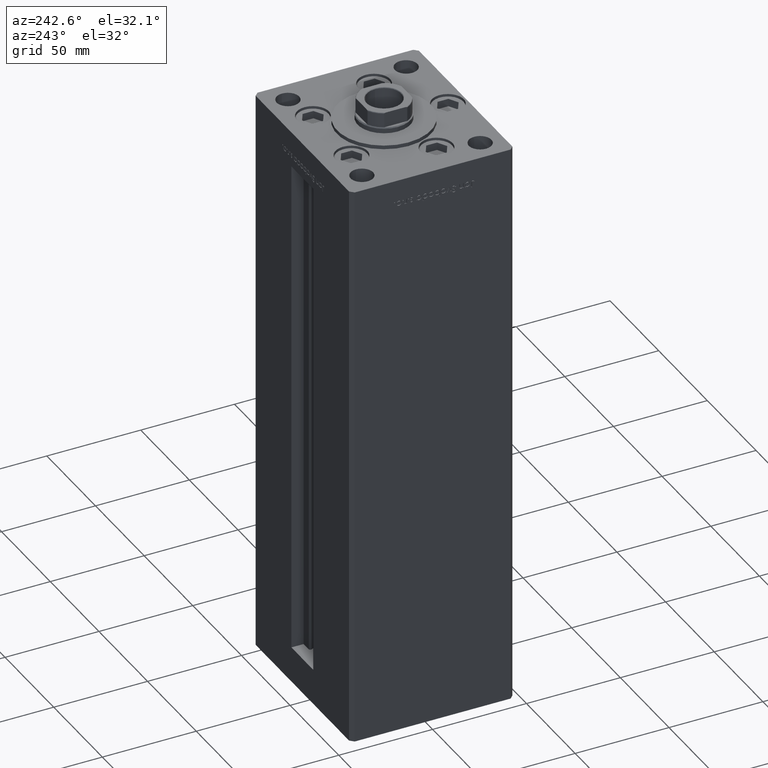
[diagram: clean part render]
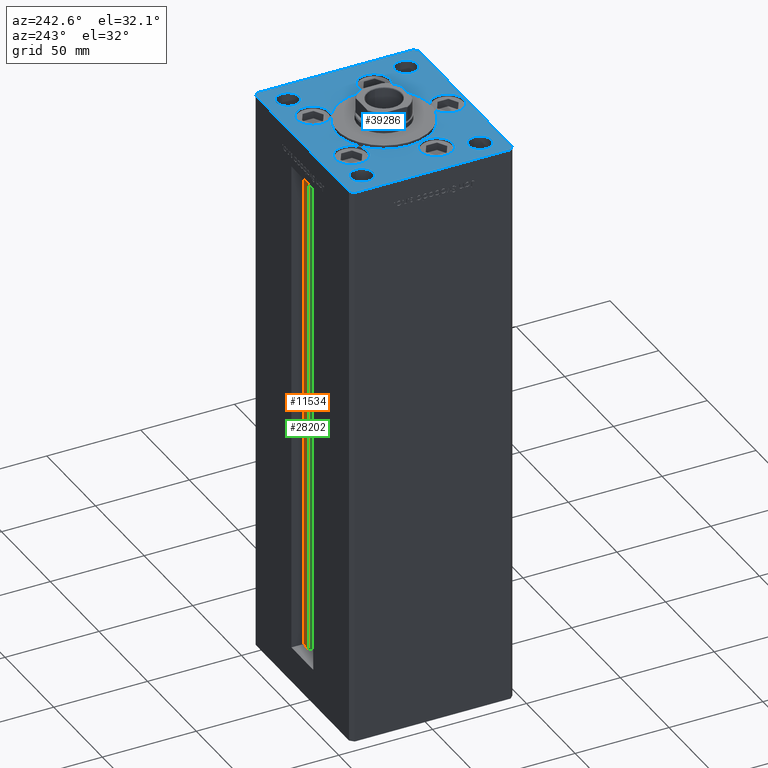
[diagram: same view with three faces highlighted in distinct colors, each labeled with its STEP entity id]
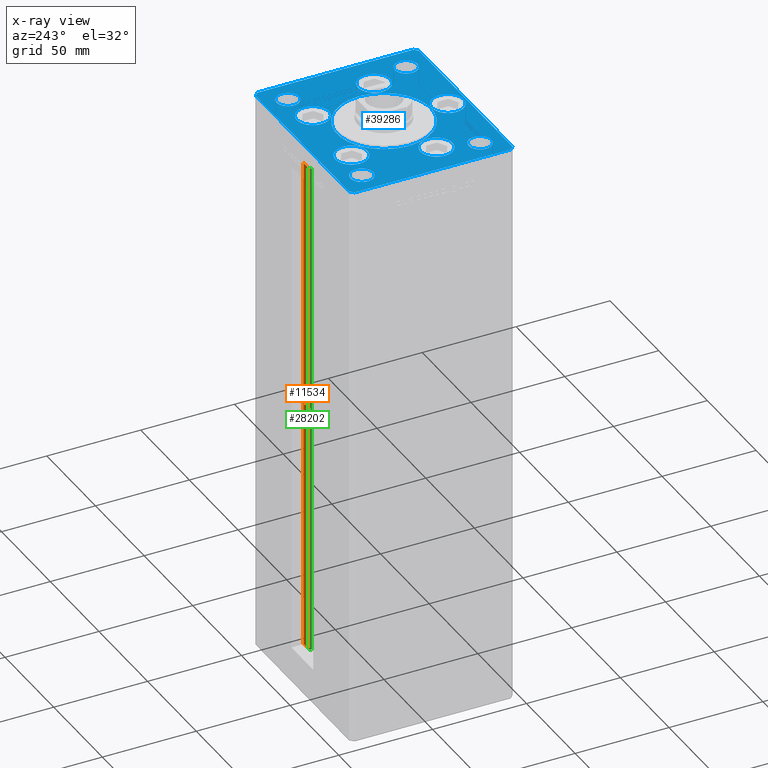
[diagram: x-ray of the same camera — body ghosted, the three highlighted faces saturated]
A machine part, auxiliary view with three faces highlighted in distinct colors.
The next image is the same camera in x-ray (body ghosted, the three faces saturated) — at least one of them is partly hidden behind the body in this view.
Their STEP definitions:

[orange] entity #11534 — the highlighted planar face has unit normal (0, -1, 0).
#181 = FACE_OUTER_BOUND ( 'NONE', #34085, .T. ) ;
#1560 = EDGE_CURVE ( 'NONE', #11189, #15449, #10312, .T. ) ;
#1743 = DIRECTION ( 'NONE',  ( 0.000000000000000000, -1.000000000000000000, 0.000000000000000000 ) ) ;
#1766 = LINE ( 'NONE', #37914, #13706 ) ;
#2005 = DIRECTION ( 'NONE',  ( 0.000000000000000000, -0.000000000000000000, -1.000000000000000000 ) ) ;
#3738 = ORIENTED_EDGE ( 'NONE', *, *, #1560, .F. ) ;
#5307 = EDGE_CURVE ( 'NONE', #35597, #15449, #1766, .T. ) ;
#5996 = VECTOR ( 'NONE', #21081, 1000.000000000000000 ) ;
#9947 = DIRECTION ( 'NONE',  ( -0.000000000000000000, -0.000000000000000000, 1.000000000000000000 ) ) ;
#10312 = LINE ( 'NONE', #26398, #17011 ) ;
#11189 = VERTEX_POINT ( 'NONE', #27886 ) ;
#11534 = ADVANCED_FACE ( 'NONE', ( #181 ), #16289, .F. ) ;
#12927 = LINE ( 'NONE', #41917, #5996 ) ;
#13706 = VECTOR ( 'NONE', #9947, 1000.000000000000000 ) ;
#13800 = CARTESIAN_POINT ( 'NONE',  ( 11.24999999999999822, 36.99999999999999289, 0.000000000000000000 ) ) ;
#14181 = CARTESIAN_POINT ( 'NONE',  ( 6.183333333333997928, 36.99999999999999289, 268.5000000000000000 ) ) ;
#15449 = VERTEX_POINT ( 'NONE', #14181 ) ;
#15586 = AXIS2_PLACEMENT_3D ( 'NONE', #42369, #1743, #2005 ) ;
#16289 = PLANE ( 'NONE',  #15586 ) ;
#17011 = VECTOR ( 'NONE', #37502, 1000.000000000000000 ) ;
#21081 = DIRECTION ( 'NONE',  ( 1.000000000000000000, 0.000000000000000000, 0.000000000000000000 ) ) ;
#21408 = CARTESIAN_POINT ( 'NONE',  ( 11.24999999999999822, 36.99999999999999289, 0.000000000000000000 ) ) ;
#21666 = LINE ( 'NONE', #21408, #44562 ) ;
#24745 = CARTESIAN_POINT ( 'NONE',  ( 6.183333333333997928, 36.99999999999999289, 0.000000000000000000 ) ) ;
#26398 = CARTESIAN_POINT ( 'NONE',  ( 0.000000000000000000, 36.99999999999999289, 268.5000000000000000 ) ) ;
#27886 = CARTESIAN_POINT ( 'NONE',  ( 11.24999999999999822, 36.99999999999999289, 268.5000000000000000 ) ) ;
#29326 = EDGE_CURVE ( 'NONE', #35803, #11189, #21666, .T. ) ;
#34085 = EDGE_LOOP ( 'NONE', ( #37202, #45616, #36809, #3738 ) ) ;
#35597 = VERTEX_POINT ( 'NONE', #24745 ) ;
#35803 = VERTEX_POINT ( 'NONE', #13800 ) ;
#36809 = ORIENTED_EDGE ( 'NONE', *, *, #5307, .T. ) ;
#37202 = ORIENTED_EDGE ( 'NONE', *, *, #29326, .F. ) ;
#37502 = DIRECTION ( 'NONE',  ( -1.000000000000000000, 0.000000000000000000, 0.000000000000000000 ) ) ;
#37765 = DIRECTION ( 'NONE',  ( -0.000000000000000000, -0.000000000000000000, 1.000000000000000000 ) ) ;
#37914 = CARTESIAN_POINT ( 'NONE',  ( 6.183333333333997928, 36.99999999999999289, 0.000000000000000000 ) ) ;
#41917 = CARTESIAN_POINT ( 'NONE',  ( 6.183333333333997928, 36.99999999999999289, 0.000000000000000000 ) ) ;
#42369 = CARTESIAN_POINT ( 'NONE',  ( 6.183333333333997928, 36.99999999999999289, 0.000000000000000000 ) ) ;
#43335 = EDGE_CURVE ( 'NONE', #35597, #35803, #12927, .T. ) ;
#44562 = VECTOR ( 'NONE', #37765, 1000.000000000000000 ) ;
#45616 = ORIENTED_EDGE ( 'NONE', *, *, #43335, .F. ) ;

[blue] entity #39286 — the highlighted planar face has unit normal (0, 0, 1).
#192 = EDGE_CURVE ( 'NONE', #24200, #39778, #48118, .T. ) ;
#314 = LINE ( 'NONE', #32773, #27022 ) ;
#416 = DIRECTION ( 'NONE',  ( 0.000000000000000000, 0.000000000000000000, 1.000000000000000000 ) ) ;
#475 = ORIENTED_EDGE ( 'NONE', *, *, #43405, .T. ) ;
#555 = VERTEX_POINT ( 'NONE', #24161 ) ;
#697 = CARTESIAN_POINT ( 'NONE',  ( 32.05550741379015989, -11.33333333333332860, 0.000000000000000000 ) ) ;
#792 = AXIS2_PLACEMENT_3D ( 'NONE', #23989, #36644, #8157 ) ;
#1007 = ORIENTED_EDGE ( 'NONE', *, *, #1639, .F. ) ;
#1054 = CARTESIAN_POINT ( 'NONE',  ( 38.00000000000000000, 31.50000000000000000, 0.000000000000000000 ) ) ;
#1176 = DIRECTION ( 'NONE',  ( -1.000000000000000000, 0.000000000000000000, 0.000000000000000000 ) ) ;
#1504 = AXIS2_PLACEMENT_3D ( 'NONE', #697, #21014, #1746 ) ;
#1530 = FACE_BOUND ( 'NONE', #26851, .T. ) ;
#1580 = DIRECTION ( 'NONE',  ( 1.000000000000000000, 0.000000000000000000, 0.000000000000000000 ) ) ;
#1639 = EDGE_CURVE ( 'NONE', #26725, #27993, #45628, .T. ) ;
#1746 = DIRECTION ( 'NONE',  ( 1.000000000000000000, 0.000000000000000000, 0.000000000000000000 ) ) ;
#1972 = EDGE_CURVE ( 'NONE', #28146, #20469, #23418, .T. ) ;
#2062 = FACE_BOUND ( 'NONE', #7058, .T. ) ;
#2169 = CARTESIAN_POINT ( 'NONE',  ( -44.00000000000001421, -31.50000000000000711, 0.000000000000000000 ) ) ;
#2263 = CARTESIAN_POINT ( 'NONE',  ( -38.00000000000000711, -31.50000000000000711, 0.000000000000000000 ) ) ;
#2310 = FACE_BOUND ( 'NONE', #28428, .T. ) ;
#2539 = CARTESIAN_POINT ( 'NONE',  ( -38.00000000000000000, 31.50000000000000000, 0.000000000000000000 ) ) ;
#2781 = ORIENTED_EDGE ( 'NONE', *, *, #38340, .T. ) ;
#2838 = DIRECTION ( 'NONE',  ( -0.000000000000000000, -0.000000000000000000, -1.000000000000000000 ) ) ;
#3533 = DIRECTION ( 'NONE',  ( 1.000000000000000000, 0.000000000000000000, 0.000000000000000000 ) ) ;
#3701 = DIRECTION ( 'NONE',  ( 0.000000000000000000, 0.000000000000000000, 1.000000000000000000 ) ) ;
#4079 = AXIS2_PLACEMENT_3D ( 'NONE', #2263, #18356, #34458 ) ;
#4179 = DIRECTION ( 'NONE',  ( 0.000000000000000000, 0.000000000000000000, 1.000000000000000000 ) ) ;
#4256 = ORIENTED_EDGE ( 'NONE', *, *, #7243, .T. ) ;
#4501 = VERTEX_POINT ( 'NONE', #9940 ) ;
#4541 = CARTESIAN_POINT ( 'NONE',  ( 0.000000000000000000, -6.938893903907228378E-15, 0.000000000000000000 ) ) ;
#4582 = AXIS2_PLACEMENT_3D ( 'NONE', #6062, #18457, #1580 ) ;
#4951 = DIRECTION ( 'NONE',  ( 1.000000000000000000, 0.000000000000000000, 0.000000000000000000 ) ) ;
#5211 = ORIENTED_EDGE ( 'NONE', *, *, #13227, .T. ) ;
#5247 = EDGE_CURVE ( 'NONE', #15479, #29249, #8652, .T. ) ;
#5390 = CARTESIAN_POINT ( 'NONE',  ( -19.82068048781374969, 27.62499999999998934, 0.000000000000000000 ) ) ;
#5439 = AXIS2_PLACEMENT_3D ( 'NONE', #16583, #4179, #16324 ) ;
#5497 = FACE_OUTER_BOUND ( 'NONE', #47842, .T. ) ;
#5922 = VERTEX_POINT ( 'NONE', #10605 ) ;
#6015 = FACE_BOUND ( 'NONE', #51521, .T. ) ;
#6062 = CARTESIAN_POINT ( 'NONE',  ( 19.82068048781374969, 27.62499999999998934, 0.000000000000000000 ) ) ;
#6343 = CARTESIAN_POINT ( 'NONE',  ( -50.00000000000000711, 41.49999999999999289, 0.000000000000000000 ) ) ;
#6689 = EDGE_CURVE ( 'NONE', #4501, #12372, #30520, .T. ) ;
#7048 = EDGE_CURVE ( 'NONE', #39778, #24200, #39914, .T. ) ;
#7058 = EDGE_LOOP ( 'NONE', ( #5211, #47440 ) ) ;
#7243 = EDGE_CURVE ( 'NONE', #33304, #20120, #19605, .T. ) ;
#7404 = CARTESIAN_POINT ( 'NONE',  ( -32.05550741379015989, -11.33333333333332860, 0.000000000000000000 ) ) ;
#7530 = ORIENTED_EDGE ( 'NONE', *, *, #20857, .F. ) ;
#7617 = DIRECTION ( 'NONE',  ( 0.000000000000000000, 0.000000000000000000, 1.000000000000000000 ) ) ;
#8068 = DIRECTION ( 'NONE',  ( -0.000000000000000000, -0.000000000000000000, -1.000000000000000000 ) ) ;
#8157 = DIRECTION ( 'NONE',  ( -1.000000000000000000, 0.000000000000000000, 0.000000000000000000 ) ) ;
#8210 = CARTESIAN_POINT ( 'NONE',  ( -40.55550741379015989, -11.33333333333332682, 0.000000000000000000 ) ) ;
#8652 = CIRCLE ( 'NONE', #36447, 5.999999999999998224 ) ;
#9201 = DIRECTION ( 'NONE',  ( -0.000000000000000000, 0.000000000000000000, 1.000000000000000000 ) ) ;
#9302 = ORIENTED_EDGE ( 'NONE', *, *, #42778, .T. ) ;
#9344 = CARTESIAN_POINT ( 'NONE',  ( 44.00000000000000000, 31.50000000000000000, 0.000000000000000000 ) ) ;
#9842 = EDGE_CURVE ( 'NONE', #27993, #26725, #43332, .T. ) ;
#9940 = CARTESIAN_POINT ( 'NONE',  ( 50.00000000000000000, 41.50000000000000711, 0.000000000000000000 ) ) ;
#9941 = VERTEX_POINT ( 'NONE', #17932 ) ;
#10211 = EDGE_CURVE ( 'NONE', #9941, #5922, #50054, .T. ) ;
#10453 = VERTEX_POINT ( 'NONE', #2169 ) ;
#10605 = CARTESIAN_POINT ( 'NONE',  ( 28.32068048781375325, 27.62499999999998934, 0.000000000000000000 ) ) ;
#10632 = EDGE_CURVE ( 'NONE', #5922, #9941, #13029, .T. ) ;
#11484 = AXIS2_PLACEMENT_3D ( 'NONE', #45254, #416, #37087 ) ;
#11564 = VERTEX_POINT ( 'NONE', #14144 ) ;
#11566 = CARTESIAN_POINT ( 'NONE',  ( 38.00000000000000711, -31.50000000000000711, 0.000000000000000000 ) ) ;
#11900 = DIRECTION ( 'NONE',  ( 1.000000000000000000, 0.000000000000000000, 0.000000000000000000 ) ) ;
#11929 = CARTESIAN_POINT ( 'NONE',  ( 48.00000000000000711, -43.49999999999992184, 0.000000000000000000 ) ) ;
#11950 = DIRECTION ( 'NONE',  ( -0.7071067811865536790, -0.7071067811865414665, 0.000000000000000000 ) ) ;
#12372 = VERTEX_POINT ( 'NONE', #44454 ) ;
#12386 = AXIS2_PLACEMENT_3D ( 'NONE', #7404, #3701, #11900 ) ;
#12669 = LINE ( 'NONE', #40106, #44752 ) ;
#12866 = CIRCLE ( 'NONE', #38121, 25.00000000000000000 ) ;
#12884 = EDGE_LOOP ( 'NONE', ( #40382, #42769 ) ) ;
#13029 = CIRCLE ( 'NONE', #4582, 8.500000000000000000 ) ;
#13168 = PLANE ( 'NONE',  #40436 ) ;
#13220 = CARTESIAN_POINT ( 'NONE',  ( 0.000000000000000000, -34.00000000000000000, 0.000000000000000000 ) ) ;
#13227 = EDGE_CURVE ( 'NONE', #47909, #40981, #47623, .T. ) ;
#13233 = DIRECTION ( 'NONE',  ( 0.000000000000000000, 0.000000000000000000, 1.000000000000000000 ) ) ;
#13308 = CIRCLE ( 'NONE', #1504, 8.500000000000000000 ) ;
#13347 = CARTESIAN_POINT ( 'NONE',  ( 0.000000000000000000, -34.00000000000000000, 0.000000000000000000 ) ) ;
#13514 = DIRECTION ( 'NONE',  ( 1.000000000000000000, 0.000000000000000000, 0.000000000000000000 ) ) ;
#13630 = ORIENTED_EDGE ( 'NONE', *, *, #5247, .T. ) ;
#14029 = AXIS2_PLACEMENT_3D ( 'NONE', #11566, #2838, #18682 ) ;
#14062 = CIRCLE ( 'NONE', #12386, 8.500000000000000000 ) ;
#14144 = CARTESIAN_POINT ( 'NONE',  ( 40.55550741379015989, -11.33333333333332860, 0.000000000000000000 ) ) ;
#15248 = CARTESIAN_POINT ( 'NONE',  ( -48.00000000000000711, -43.50000000000002842, 0.000000000000000000 ) ) ;
#15301 = ORIENTED_EDGE ( 'NONE', *, *, #19968, .F. ) ;
#15479 = VERTEX_POINT ( 'NONE', #15487 ) ;
#15487 = CARTESIAN_POINT ( 'NONE',  ( -44.00000000000000000, 31.50000000000000000, 0.000000000000000000 ) ) ;
#15846 = EDGE_LOOP ( 'NONE', ( #1007, #19018 ) ) ;
#16183 = DIRECTION ( 'NONE',  ( 0.7071067811865487940, -0.7071067811865463515, 0.000000000000000000 ) ) ;
#16324 = DIRECTION ( 'NONE',  ( 1.000000000000000000, 0.000000000000000000, 0.000000000000000000 ) ) ;
#16524 = CIRCLE ( 'NONE', #24120, 8.500000000000000000 ) ;
#16583 = CARTESIAN_POINT ( 'NONE',  ( 19.82068048781374969, 27.62499999999998934, 0.000000000000000000 ) ) ;
#16820 = AXIS2_PLACEMENT_3D ( 'NONE', #13220, #42220, #38524 ) ;
#16865 = CARTESIAN_POINT ( 'NONE',  ( 32.05550741379015989, -11.33333333333332860, 0.000000000000000000 ) ) ;
#17149 = AXIS2_PLACEMENT_3D ( 'NONE', #5390, #17523, #49188 ) ;
#17371 = DIRECTION ( 'NONE',  ( 1.000000000000000000, 0.000000000000000000, 0.000000000000000000 ) ) ;
#17523 = DIRECTION ( 'NONE',  ( 0.000000000000000000, 0.000000000000000000, 1.000000000000000000 ) ) ;
#17624 = CARTESIAN_POINT ( 'NONE',  ( 48.00000000000000711, -43.49999999999992184, 0.000000000000000000 ) ) ;
#17676 = VERTEX_POINT ( 'NONE', #23294 ) ;
#17857 = VERTEX_POINT ( 'NONE', #26145 ) ;
#17918 = CARTESIAN_POINT ( 'NONE',  ( 44.00000000000001421, -31.50000000000000711, 0.000000000000000000 ) ) ;
#17932 = CARTESIAN_POINT ( 'NONE',  ( 11.32068048781375147, 27.62499999999998934, 0.000000000000000000 ) ) ;
#18356 = DIRECTION ( 'NONE',  ( 0.000000000000000000, 0.000000000000000000, 1.000000000000000000 ) ) ;
#18416 = DIRECTION ( 'NONE',  ( 1.000000000000000000, 1.156482317317871331E-15, 0.000000000000000000 ) ) ;
#18457 = DIRECTION ( 'NONE',  ( 0.000000000000000000, 0.000000000000000000, 1.000000000000000000 ) ) ;
#18682 = DIRECTION ( 'NONE',  ( -1.000000000000000000, 0.000000000000000000, 0.000000000000000000 ) ) ;
#18685 = LINE ( 'NONE', #34521, #28766 ) ;
#19018 = ORIENTED_EDGE ( 'NONE', *, *, #9842, .F. ) ;
#19605 = LINE ( 'NONE', #35703, #47469 ) ;
#19968 = EDGE_CURVE ( 'NONE', #555, #24397, #30868, .T. ) ;
#20120 = VERTEX_POINT ( 'NONE', #26512 ) ;
#20147 = EDGE_CURVE ( 'NONE', #17676, #35313, #16524, .T. ) ;
#20469 = VERTEX_POINT ( 'NONE', #11929 ) ;
#20730 = AXIS2_PLACEMENT_3D ( 'NONE', #13347, #33655, #41825 ) ;
#20857 = EDGE_CURVE ( 'NONE', #17857, #29985, #41777, .T. ) ;
#21014 = DIRECTION ( 'NONE',  ( 0.000000000000000000, 0.000000000000000000, 1.000000000000000000 ) ) ;
#21192 = VERTEX_POINT ( 'NONE', #30425 ) ;
#21329 = FACE_BOUND ( 'NONE', #28491, .T. ) ;
#21548 = ORIENTED_EDGE ( 'NONE', *, *, #22611, .F. ) ;
#21701 = EDGE_CURVE ( 'NONE', #20469, #27800, #25277, .T. ) ;
#21877 = EDGE_CURVE ( 'NONE', #40981, #47909, #36776, .T. ) ;
#22334 = CARTESIAN_POINT ( 'NONE',  ( 50.00000000000000000, 41.50000000000000711, 0.000000000000000000 ) ) ;
#22611 = EDGE_CURVE ( 'NONE', #35313, #17676, #14062, .T. ) ;
#23204 = ORIENTED_EDGE ( 'NONE', *, *, #192, .F. ) ;
#23218 = CARTESIAN_POINT ( 'NONE',  ( 50.00000000000000000, -41.49999999999992895, 0.000000000000000000 ) ) ;
#23294 = CARTESIAN_POINT ( 'NONE',  ( -23.55550741379015989, -11.33333333333332860, 0.000000000000000000 ) ) ;
#23418 = LINE ( 'NONE', #15248, #27946 ) ;
#23752 = ORIENTED_EDGE ( 'NONE', *, *, #26599, .F. ) ;
#23788 = ORIENTED_EDGE ( 'NONE', *, *, #45110, .T. ) ;
#23989 = CARTESIAN_POINT ( 'NONE',  ( -38.00000000000000000, 31.50000000000000000, 0.000000000000000000 ) ) ;
#24120 = AXIS2_PLACEMENT_3D ( 'NONE', #35466, #34685, #3533 ) ;
#24161 = CARTESIAN_POINT ( 'NONE',  ( -25.00000000000000000, -6.938893903907228378E-15, 0.000000000000000000 ) ) ;
#24200 = VERTEX_POINT ( 'NONE', #29619 ) ;
#24397 = VERTEX_POINT ( 'NONE', #24545 ) ;
#24477 = CIRCLE ( 'NONE', #29547, 6.000000000000005329 ) ;
#24545 = CARTESIAN_POINT ( 'NONE',  ( 25.00000000000000000, -3.877276906038844941E-15, 0.000000000000000000 ) ) ;
#24596 = DIRECTION ( 'NONE',  ( 0.000000000000000000, 0.000000000000000000, 1.000000000000000000 ) ) ;
#24923 = CARTESIAN_POINT ( 'NONE',  ( 38.00000000000000711, -31.50000000000000711, 0.000000000000000000 ) ) ;
#24989 = ORIENTED_EDGE ( 'NONE', *, *, #1972, .T. ) ;
#25277 = LINE ( 'NONE', #17624, #37603 ) ;
#25281 = FACE_BOUND ( 'NONE', #36151, .T. ) ;
#25347 = CARTESIAN_POINT ( 'NONE',  ( 38.00000000000000000, 31.50000000000000000, 0.000000000000000000 ) ) ;
#25771 = DIRECTION ( 'NONE',  ( -1.000000000000000000, 0.000000000000000000, 0.000000000000000000 ) ) ;
#25804 = FACE_BOUND ( 'NONE', #43628, .T. ) ;
#25952 = CIRCLE ( 'NONE', #4079, 6.000000000000005329 ) ;
#26145 = CARTESIAN_POINT ( 'NONE',  ( 8.500000000000000000, -34.00000000000000000, 0.000000000000000000 ) ) ;
#26328 = ORIENTED_EDGE ( 'NONE', *, *, #28779, .F. ) ;
#26403 = EDGE_CURVE ( 'NONE', #11564, #28224, #13308, .T. ) ;
#26512 = CARTESIAN_POINT ( 'NONE',  ( -50.00000000000000000, -41.50000000000004263, 0.000000000000000000 ) ) ;
#26599 = EDGE_CURVE ( 'NONE', #10453, #47245, #25952, .T. ) ;
#26725 = VERTEX_POINT ( 'NONE', #9344 ) ;
#26851 = EDGE_LOOP ( 'NONE', ( #51469, #26328 ) ) ;
#26879 = ORIENTED_EDGE ( 'NONE', *, *, #45767, .F. ) ;
#27022 = VECTOR ( 'NONE', #11950, 1000.000000000000000 ) ;
#27800 = VERTEX_POINT ( 'NONE', #23218 ) ;
#27906 = AXIS2_PLACEMENT_3D ( 'NONE', #44654, #24596, #13514 ) ;
#27946 = VECTOR ( 'NONE', #18416, 1000.000000000000000 ) ;
#27993 = VERTEX_POINT ( 'NONE', #29717 ) ;
#28010 = DIRECTION ( 'NONE',  ( 1.000000000000000000, 0.000000000000000000, 0.000000000000000000 ) ) ;
#28146 = VERTEX_POINT ( 'NONE', #32320 ) ;
#28224 = VERTEX_POINT ( 'NONE', #42297 ) ;
#28428 = EDGE_LOOP ( 'NONE', ( #23204, #49512 ) ) ;
#28491 = EDGE_LOOP ( 'NONE', ( #15301, #46616 ) ) ;
#28766 = VECTOR ( 'NONE', #46909, 1000.000000000000000 ) ;
#28779 = EDGE_CURVE ( 'NONE', #28224, #11564, #42866, .T. ) ;
#29249 = VERTEX_POINT ( 'NONE', #46196 ) ;
#29517 = CARTESIAN_POINT ( 'NONE',  ( 0.000000000000000000, 0.000000000000000000, 0.000000000000000000 ) ) ;
#29547 = AXIS2_PLACEMENT_3D ( 'NONE', #51661, #7617, #4951 ) ;
#29619 = CARTESIAN_POINT ( 'NONE',  ( -11.32068048781375147, 27.62499999999998934, 0.000000000000000000 ) ) ;
#29717 = CARTESIAN_POINT ( 'NONE',  ( 32.00000000000000000, 31.50000000000000000, 0.000000000000000000 ) ) ;
#29733 = CARTESIAN_POINT ( 'NONE',  ( -32.00000000000000000, -31.50000000000000711, 0.000000000000000000 ) ) ;
#29792 = DIRECTION ( 'NONE',  ( 1.000000000000000000, 0.000000000000000000, 0.000000000000000000 ) ) ;
#29985 = VERTEX_POINT ( 'NONE', #47587 ) ;
#30302 = FACE_BOUND ( 'NONE', #34002, .T. ) ;
#30368 = DIRECTION ( 'NONE',  ( 1.000000000000000000, 0.000000000000000000, 0.000000000000000000 ) ) ;
#30425 = CARTESIAN_POINT ( 'NONE',  ( -48.00000000000000000, 43.49999999999997158, 0.000000000000000000 ) ) ;
#30520 = LINE ( 'NONE', #22334, #46609 ) ;
#30868 = CIRCLE ( 'NONE', #11484, 25.00000000000000000 ) ;
#31134 = CIRCLE ( 'NONE', #16820, 8.500000000000000000 ) ;
#32320 = CARTESIAN_POINT ( 'NONE',  ( -48.00000000000000711, -43.50000000000002842, 0.000000000000000000 ) ) ;
#32773 = CARTESIAN_POINT ( 'NONE',  ( -48.00000000000000000, 43.49999999999997158, 0.000000000000000000 ) ) ;
#32970 = DIRECTION ( 'NONE',  ( 0.000000000000000000, 0.000000000000000000, 1.000000000000000000 ) ) ;
#33304 = VERTEX_POINT ( 'NONE', #6343 ) ;
#33655 = DIRECTION ( 'NONE',  ( 0.000000000000000000, 0.000000000000000000, 1.000000000000000000 ) ) ;
#34002 = EDGE_LOOP ( 'NONE', ( #40696, #21548 ) ) ;
#34458 = DIRECTION ( 'NONE',  ( 1.000000000000000000, 0.000000000000000000, 0.000000000000000000 ) ) ;
#34521 = CARTESIAN_POINT ( 'NONE',  ( 47.99999999999999289, 43.50000000000000000, 0.000000000000000000 ) ) ;
#34685 = DIRECTION ( 'NONE',  ( 0.000000000000000000, 0.000000000000000000, 1.000000000000000000 ) ) ;
#35003 = ORIENTED_EDGE ( 'NONE', *, *, #38088, .F. ) ;
#35313 = VERTEX_POINT ( 'NONE', #8210 ) ;
#35447 = LINE ( 'NONE', #39930, #42980 ) ;
#35466 = CARTESIAN_POINT ( 'NONE',  ( -32.05550741379015989, -11.33333333333332860, 0.000000000000000000 ) ) ;
#35538 = AXIS2_PLACEMENT_3D ( 'NONE', #25347, #13233, #30368 ) ;
#35703 = CARTESIAN_POINT ( 'NONE',  ( -50.00000000000000711, 41.49999999999999289, 0.000000000000000000 ) ) ;
#36151 = EDGE_LOOP ( 'NONE', ( #2781, #13630 ) ) ;
#36169 = CIRCLE ( 'NONE', #792, 5.999999999999998224 ) ;
#36403 = DIRECTION ( 'NONE',  ( 0.000000000000000000, 1.000000000000000000, 0.000000000000000000 ) ) ;
#36447 = AXIS2_PLACEMENT_3D ( 'NONE', #2539, #50030, #25771 ) ;
#36644 = DIRECTION ( 'NONE',  ( -0.000000000000000000, -0.000000000000000000, -1.000000000000000000 ) ) ;
#36776 = CIRCLE ( 'NONE', #14029, 6.000000000000005329 ) ;
#37087 = DIRECTION ( 'NONE',  ( 1.000000000000000000, 0.000000000000000000, 0.000000000000000000 ) ) ;
#37498 = ORIENTED_EDGE ( 'NONE', *, *, #46462, .T. ) ;
#37603 = VECTOR ( 'NONE', #41376, 1000.000000000000114 ) ;
#37820 = AXIS2_PLACEMENT_3D ( 'NONE', #16865, #32970, #29792 ) ;
#38088 = EDGE_CURVE ( 'NONE', #29985, #17857, #31134, .T. ) ;
#38121 = AXIS2_PLACEMENT_3D ( 'NONE', #4541, #41452, #40431 ) ;
#38173 = DIRECTION ( 'NONE',  ( -0.7071067811865512365, 0.7071067811865439090, 0.000000000000000000 ) ) ;
#38209 = FACE_BOUND ( 'NONE', #12884, .T. ) ;
#38266 = ORIENTED_EDGE ( 'NONE', *, *, #21701, .T. ) ;
#38340 = EDGE_CURVE ( 'NONE', #29249, #15479, #36169, .T. ) ;
#38524 = DIRECTION ( 'NONE',  ( 1.000000000000000000, 0.000000000000000000, 0.000000000000000000 ) ) ;
#38672 = CARTESIAN_POINT ( 'NONE',  ( -28.32068048781375325, 27.62499999999998934, 0.000000000000000000 ) ) ;
#39286 = ADVANCED_FACE ( 'NONE', ( #21329, #2310, #38209, #1530, #25804, #30302, #25281, #41645, #6015, #5497, #2062 ), #13168, .T. ) ;
#39778 = VERTEX_POINT ( 'NONE', #38672 ) ;
#39914 = CIRCLE ( 'NONE', #17149, 8.500000000000000000 ) ;
#39930 = CARTESIAN_POINT ( 'NONE',  ( -50.00000000000000000, -41.50000000000004263, 0.000000000000000000 ) ) ;
#40106 = CARTESIAN_POINT ( 'NONE',  ( 50.00000000000000000, -41.49999999999992895, 0.000000000000000000 ) ) ;
#40382 = ORIENTED_EDGE ( 'NONE', *, *, #10632, .F. ) ;
#40431 = DIRECTION ( 'NONE',  ( 1.000000000000000000, 0.000000000000000000, 0.000000000000000000 ) ) ;
#40436 = AXIS2_PLACEMENT_3D ( 'NONE', #29517, #9201, #17371 ) ;
#40696 = ORIENTED_EDGE ( 'NONE', *, *, #20147, .F. ) ;
#40981 = VERTEX_POINT ( 'NONE', #45582 ) ;
#41376 = DIRECTION ( 'NONE',  ( 0.7071067811865474617, 0.7071067811865474617, 0.000000000000000000 ) ) ;
#41452 = DIRECTION ( 'NONE',  ( 0.000000000000000000, 0.000000000000000000, 1.000000000000000000 ) ) ;
#41645 = FACE_BOUND ( 'NONE', #15846, .T. ) ;
#41777 = CIRCLE ( 'NONE', #20730, 8.500000000000000000 ) ;
#41825 = DIRECTION ( 'NONE',  ( 1.000000000000000000, 0.000000000000000000, 0.000000000000000000 ) ) ;
#42220 = DIRECTION ( 'NONE',  ( 0.000000000000000000, 0.000000000000000000, 1.000000000000000000 ) ) ;
#42297 = CARTESIAN_POINT ( 'NONE',  ( 23.55550741379015633, -11.33333333333332682, 0.000000000000000000 ) ) ;
#42769 = ORIENTED_EDGE ( 'NONE', *, *, #10211, .F. ) ;
#42778 = EDGE_CURVE ( 'NONE', #27800, #4501, #12669, .T. ) ;
#42866 = CIRCLE ( 'NONE', #37820, 8.500000000000000000 ) ;
#42980 = VECTOR ( 'NONE', #16183, 1000.000000000000000 ) ;
#43332 = CIRCLE ( 'NONE', #44204, 5.999999999999998224 ) ;
#43405 = EDGE_CURVE ( 'NONE', #12372, #21192, #18685, .T. ) ;
#43628 = EDGE_LOOP ( 'NONE', ( #7530, #35003 ) ) ;
#44134 = DIRECTION ( 'NONE',  ( 8.360113137237620037E-17, -1.000000000000000000, 0.000000000000000000 ) ) ;
#44204 = AXIS2_PLACEMENT_3D ( 'NONE', #1054, #48302, #28010 ) ;
#44454 = CARTESIAN_POINT ( 'NONE',  ( 47.99999999999999289, 43.50000000000000000, 0.000000000000000000 ) ) ;
#44569 = ORIENTED_EDGE ( 'NONE', *, *, #6689, .T. ) ;
#44654 = CARTESIAN_POINT ( 'NONE',  ( -19.82068048781374969, 27.62499999999998934, 0.000000000000000000 ) ) ;
#44752 = VECTOR ( 'NONE', #36403, 1000.000000000000000 ) ;
#45110 = EDGE_CURVE ( 'NONE', #20120, #28146, #35447, .T. ) ;
#45254 = CARTESIAN_POINT ( 'NONE',  ( 0.000000000000000000, -6.938893903907228378E-15, 0.000000000000000000 ) ) ;
#45582 = CARTESIAN_POINT ( 'NONE',  ( 32.00000000000000000, -31.50000000000000711, 0.000000000000000000 ) ) ;
#45628 = CIRCLE ( 'NONE', #35538, 5.999999999999998224 ) ;
#45767 = EDGE_CURVE ( 'NONE', #47245, #10453, #24477, .T. ) ;
#46196 = CARTESIAN_POINT ( 'NONE',  ( -32.00000000000000000, 31.50000000000000000, 0.000000000000000000 ) ) ;
#46462 = EDGE_CURVE ( 'NONE', #21192, #33304, #314, .T. ) ;
#46609 = VECTOR ( 'NONE', #38173, 999.9999999999998863 ) ;
#46616 = ORIENTED_EDGE ( 'NONE', *, *, #50821, .F. ) ;
#46909 = DIRECTION ( 'NONE',  ( -1.000000000000000000, -2.891205793294678326E-16, 0.000000000000000000 ) ) ;
#47245 = VERTEX_POINT ( 'NONE', #29733 ) ;
#47440 = ORIENTED_EDGE ( 'NONE', *, *, #21877, .T. ) ;
#47469 = VECTOR ( 'NONE', #44134, 1000.000000000000000 ) ;
#47587 = CARTESIAN_POINT ( 'NONE',  ( -8.500000000000000000, -34.00000000000000000, 0.000000000000000000 ) ) ;
#47623 = CIRCLE ( 'NONE', #50126, 6.000000000000005329 ) ;
#47842 = EDGE_LOOP ( 'NONE', ( #23788, #24989, #38266, #9302, #44569, #475, #37498, #4256 ) ) ;
#47909 = VERTEX_POINT ( 'NONE', #17918 ) ;
#48118 = CIRCLE ( 'NONE', #27906, 8.500000000000000000 ) ;
#48302 = DIRECTION ( 'NONE',  ( 0.000000000000000000, 0.000000000000000000, 1.000000000000000000 ) ) ;
#49188 = DIRECTION ( 'NONE',  ( 1.000000000000000000, 0.000000000000000000, 0.000000000000000000 ) ) ;
#49512 = ORIENTED_EDGE ( 'NONE', *, *, #7048, .F. ) ;
#50030 = DIRECTION ( 'NONE',  ( -0.000000000000000000, -0.000000000000000000, -1.000000000000000000 ) ) ;
#50054 = CIRCLE ( 'NONE', #5439, 8.500000000000000000 ) ;
#50126 = AXIS2_PLACEMENT_3D ( 'NONE', #24923, #8068, #1176 ) ;
#50821 = EDGE_CURVE ( 'NONE', #24397, #555, #12866, .T. ) ;
#51469 = ORIENTED_EDGE ( 'NONE', *, *, #26403, .F. ) ;
#51521 = EDGE_LOOP ( 'NONE', ( #26879, #23752 ) ) ;
#51661 = CARTESIAN_POINT ( 'NONE',  ( -38.00000000000000711, -31.50000000000000711, 0.000000000000000000 ) ) ;

[green] entity #28202 — the highlighted cylindrical surface (edge-blend (fillet) strip) has radius 0.9333 mm, axis along (0, 0, 1).
#1047 = DIRECTION ( 'NONE',  ( 1.000000000000000000, 0.000000000000000000, 0.000000000000000000 ) ) ;
#1295 = VECTOR ( 'NONE', #33895, 1000.000000000000000 ) ;
#1670 = CARTESIAN_POINT ( 'NONE',  ( 6.183333333333997928, 36.06666666666598786, 0.000000000000000000 ) ) ;
#1766 = LINE ( 'NONE', #37914, #13706 ) ;
#2189 = DIRECTION ( 'NONE',  ( -0.000000000000000000, -0.000000000000000000, 1.000000000000000000 ) ) ;
#2317 = EDGE_LOOP ( 'NONE', ( #20324, #51858, #10064, #32581 ) ) ;
#5307 = EDGE_CURVE ( 'NONE', #35597, #15449, #1766, .T. ) ;
#5786 = DIRECTION ( 'NONE',  ( -0.000000000000000000, -0.000000000000000000, -1.000000000000000000 ) ) ;
#5803 = AXIS2_PLACEMENT_3D ( 'NONE', #1670, #2189, #10114 ) ;
#7656 = EDGE_CURVE ( 'NONE', #24072, #35597, #21367, .T. ) ;
#9072 = CYLINDRICAL_SURFACE ( 'NONE', #5803, 0.9333333333340008142 ) ;
#9947 = DIRECTION ( 'NONE',  ( -0.000000000000000000, -0.000000000000000000, 1.000000000000000000 ) ) ;
#10064 = ORIENTED_EDGE ( 'NONE', *, *, #13297, .T. ) ;
#10114 = DIRECTION ( 'NONE',  ( 1.000000000000000000, 0.000000000000000000, 0.000000000000000000 ) ) ;
#10430 = DIRECTION ( 'NONE',  ( 1.000000000000000000, 0.000000000000000000, 0.000000000000000000 ) ) ;
#11164 = CARTESIAN_POINT ( 'NONE',  ( 5.375042956467943611, 35.59999999999898534, 268.5000000000000000 ) ) ;
#13297 = EDGE_CURVE ( 'NONE', #24072, #26085, #13584, .T. ) ;
#13555 = FACE_OUTER_BOUND ( 'NONE', #2317, .T. ) ;
#13584 = LINE ( 'NONE', #45757, #1295 ) ;
#13706 = VECTOR ( 'NONE', #9947, 1000.000000000000000 ) ;
#14181 = CARTESIAN_POINT ( 'NONE',  ( 6.183333333333997928, 36.99999999999999289, 268.5000000000000000 ) ) ;
#14360 = CARTESIAN_POINT ( 'NONE',  ( 5.375042956467945388, 35.59999999999898534, 0.000000000000000000 ) ) ;
#15449 = VERTEX_POINT ( 'NONE', #14181 ) ;
#15798 = AXIS2_PLACEMENT_3D ( 'NONE', #17555, #34434, #10430 ) ;
#17400 = CARTESIAN_POINT ( 'NONE',  ( 6.183333333333997928, 36.06666666666598786, 0.000000000000000000 ) ) ;
#17555 = CARTESIAN_POINT ( 'NONE',  ( 6.183333333333997928, 36.06666666666598786, 268.5000000000000000 ) ) ;
#17985 = AXIS2_PLACEMENT_3D ( 'NONE', #17400, #5786, #1047 ) ;
#20324 = ORIENTED_EDGE ( 'NONE', *, *, #5307, .F. ) ;
#21367 = CIRCLE ( 'NONE', #17985, 0.9333333333340008142 ) ;
#24072 = VERTEX_POINT ( 'NONE', #14360 ) ;
#24745 = CARTESIAN_POINT ( 'NONE',  ( 6.183333333333997928, 36.99999999999999289, 0.000000000000000000 ) ) ;
#24856 = EDGE_CURVE ( 'NONE', #26085, #15449, #38541, .T. ) ;
#26085 = VERTEX_POINT ( 'NONE', #11164 ) ;
#28202 = ADVANCED_FACE ( 'NONE', ( #13555 ), #9072, .T. ) ;
#32581 = ORIENTED_EDGE ( 'NONE', *, *, #24856, .T. ) ;
#33895 = DIRECTION ( 'NONE',  ( -0.000000000000000000, -0.000000000000000000, 1.000000000000000000 ) ) ;
#34434 = DIRECTION ( 'NONE',  ( 0.000000000000000000, 0.000000000000000000, -1.000000000000000000 ) ) ;
#35597 = VERTEX_POINT ( 'NONE', #24745 ) ;
#37914 = CARTESIAN_POINT ( 'NONE',  ( 6.183333333333997928, 36.99999999999999289, 0.000000000000000000 ) ) ;
#38541 = CIRCLE ( 'NONE', #15798, 0.9333333333340008142 ) ;
#45757 = CARTESIAN_POINT ( 'NONE',  ( 5.375042956467945388, 35.59999999999898534, 0.000000000000000000 ) ) ;
#51858 = ORIENTED_EDGE ( 'NONE', *, *, #7656, .F. ) ;